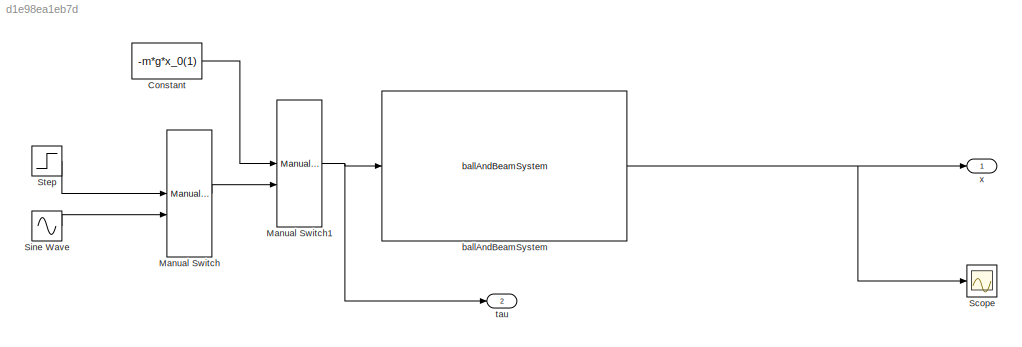
MODEL slx_d1e98ea1eb7d
KIND model
CONFIG AbsTol = auto
CONFIG EnableMultiTasking = off
CONFIG FixedStep = auto
CONFIG MaxStep = 0.001
CONFIG MinStep = auto
CONFIG RelTol = 1e-3
CONFIG SampleTimeConstraint = Unconstrained
CONFIG Solver = VariableStepAuto
CONFIG SolverName = VariableStepAuto
CONFIG StartTime = 0.0
CONFIG StopTime = 10.0
BLOCK [Constant] Constant
  Value = -m*g*x_0(1)
BLOCK [ManualSwitch] Manual Switch
  CurrentSetting = 0
BLOCK [ManualSwitch] Manual Switch1
  CurrentSetting = 0
BLOCK [Scope] Scope
  Floating = off
  NumInputPorts = 1
  Ports = [1]
  ScopeSpecificationString = Simulink.scopes.TimeScopeBlockCfg('CurrentConfiguration', extmgr.ConfigurationSet(extmgr.Configuration('Core','General UI',true),extmgr.Configuration('Core','Source UI',true),extmgr.Configuration('Sources','WiredSimulink',true),extmgr.Configuration('Visuals','Time Domain',true,'SerializedDisplays',{struct('MinYLimReal','-0.97657','MaxYLimReal','4.82307','YLabelReal','','MinYLimMag','0.00000','MaxY...<+1899ch>
BLOCK [Sin] Sine Wave
  Amplitude = 0.2
  Frequency = 100*2*pi
  Phase = pi/2
  Ports = [0, 1]
  SampleTime = 0
BLOCK [Step] Step
  After = 0.1
  SampleTime = 0
  Time = 0.1
BLOCK [Reference] ballAndBeamSystem  REF=helperLibrary/ballAndBeamSystem
  Ports = [1, 1]
  SourceBlock = helperLibrary/ballAndBeamSystem
  SourceType = SubSystem
BLOCK [Outport] tau
  Port = 2
BLOCK [Outport] x
LINE Constant:1 -> Manual Switch1:1
NET Manual Switch1:1 -> ballAndBeamSystem:1, tau:1
LINE Manual Switch:1 -> Manual Switch1:2
LINE Sine Wave:1 -> Manual Switch:2
LINE Step:1 -> Manual Switch:1
NET ballAndBeamSystem:1 -> Scope:1, x:1
note: NET lines group one-source signal fan-out (src -> all destinations, sorted); 1:1 wires keep LINE
